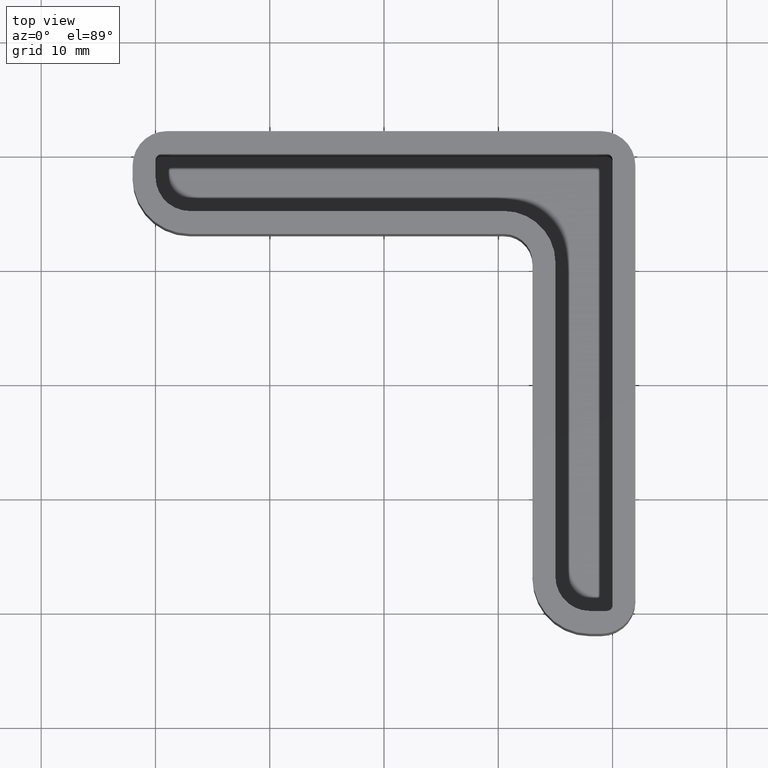
[diagram: clean part render]
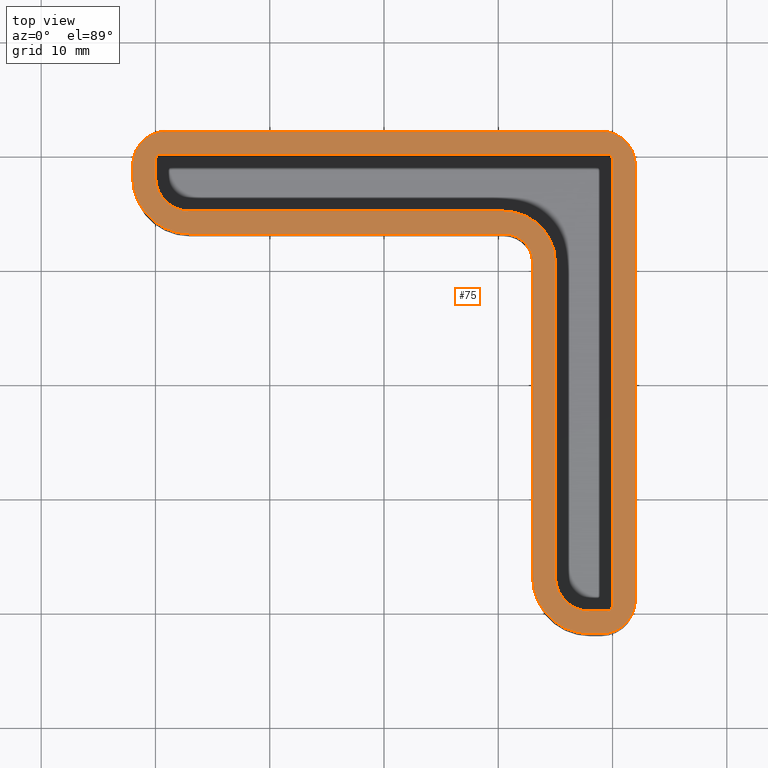
[diagram: same view with one face highlighted and labeled with its STEP entity id]
A machine part, top view. The second image highlights one B-rep face of the part: STEP entity #75.
In plain terms, the highlighted planar face has unit normal (0, 0, 1).
Its self-contained STEP definition (entity closure, byte-faithful):
#75 = ADVANCED_FACE( '', ( #115, #116 ), #117, .T. );
#115 = FACE_OUTER_BOUND( '', #194, .T. );
#116 = FACE_BOUND( '', #195, .T. );
#117 = PLANE( '', #196 );
#194 = EDGE_LOOP( '', ( #317, #318, #319, #320, #321, #322, #323, #324, #325, #326, #327, #328 ) );
#195 = EDGE_LOOP( '', ( #329, #330, #331, #332, #333, #334, #335, #336, #337, #338, #339, #340 ) );
#196 = AXIS2_PLACEMENT_3D( '', #341, #342, #343 );
#317 = ORIENTED_EDGE( '', *, *, #614, .T. );
#318 = ORIENTED_EDGE( '', *, *, #615, .T. );
#319 = ORIENTED_EDGE( '', *, *, #616, .T. );
#320 = ORIENTED_EDGE( '', *, *, #617, .T. );
#321 = ORIENTED_EDGE( '', *, *, #618, .T. );
#322 = ORIENTED_EDGE( '', *, *, #619, .T. );
#323 = ORIENTED_EDGE( '', *, *, #620, .T. );
#324 = ORIENTED_EDGE( '', *, *, #621, .T. );
#325 = ORIENTED_EDGE( '', *, *, #622, .T. );
#326 = ORIENTED_EDGE( '', *, *, #623, .T. );
#327 = ORIENTED_EDGE( '', *, *, #624, .T. );
#328 = ORIENTED_EDGE( '', *, *, #625, .T. );
#329 = ORIENTED_EDGE( '', *, *, #626, .T. );
#330 = ORIENTED_EDGE( '', *, *, #627, .T. );
#331 = ORIENTED_EDGE( '', *, *, #628, .T. );
#332 = ORIENTED_EDGE( '', *, *, #629, .T. );
#333 = ORIENTED_EDGE( '', *, *, #630, .T. );
#334 = ORIENTED_EDGE( '', *, *, #631, .T. );
#335 = ORIENTED_EDGE( '', *, *, #632, .T. );
#336 = ORIENTED_EDGE( '', *, *, #633, .T. );
#337 = ORIENTED_EDGE( '', *, *, #634, .T. );
#338 = ORIENTED_EDGE( '', *, *, #635, .T. );
#339 = ORIENTED_EDGE( '', *, *, #636, .T. );
#340 = ORIENTED_EDGE( '', *, *, #637, .T. );
#341 = CARTESIAN_POINT( '', ( -1.00000000000000, -39.0000000000000, 0.000000000000000 ) );
#342 = DIRECTION( '', ( 0.000000000000000, 0.000000000000000, 1.00000000000000 ) );
#343 = DIRECTION( '', ( 1.00000000000000, -1.83690953073357E-016, 0.000000000000000 ) );
#614 = EDGE_CURVE( '', #707, #708, #709, .T. );
#615 = EDGE_CURVE( '', #708, #710, #711, .T. );
#616 = EDGE_CURVE( '', #710, #712, #713, .T. );
#617 = EDGE_CURVE( '', #712, #714, #715, .T. );
#618 = EDGE_CURVE( '', #714, #716, #717, .T. );
#619 = EDGE_CURVE( '', #716, #718, #719, .T. );
#620 = EDGE_CURVE( '', #718, #720, #721, .T. );
#621 = EDGE_CURVE( '', #720, #722, #723, .T. );
#622 = EDGE_CURVE( '', #722, #724, #725, .T. );
#623 = EDGE_CURVE( '', #724, #726, #727, .T. );
#624 = EDGE_CURVE( '', #726, #728, #729, .T. );
#625 = EDGE_CURVE( '', #728, #707, #730, .T. );
#626 = EDGE_CURVE( '', #731, #732, #733, .T. );
#627 = EDGE_CURVE( '', #732, #734, #735, .F. );
#628 = EDGE_CURVE( '', #734, #736, #737, .T. );
#629 = EDGE_CURVE( '', #736, #738, #739, .F. );
#630 = EDGE_CURVE( '', #738, #740, #741, .T. );
#631 = EDGE_CURVE( '', #740, #742, #743, .T. );
#632 = EDGE_CURVE( '', #742, #744, #745, .T. );
#633 = EDGE_CURVE( '', #744, #746, #747, .F. );
#634 = EDGE_CURVE( '', #746, #748, #749, .T. );
#635 = EDGE_CURVE( '', #748, #750, #751, .F. );
#636 = EDGE_CURVE( '', #750, #752, #753, .T. );
#637 = EDGE_CURVE( '', #752, #731, #754, .F. );
#707 = VERTEX_POINT( '', #857 );
#708 = VERTEX_POINT( '', #858 );
#709 = CIRCLE( '', #859, 3.00000000000000 );
#710 = VERTEX_POINT( '', #860 );
#711 = LINE( '', #861, #862 );
#712 = VERTEX_POINT( '', #863 );
#713 = CIRCLE( '', #864, 3.00000000000000 );
#714 = VERTEX_POINT( '', #865 );
#715 = LINE( '', #866, #867 );
#716 = VERTEX_POINT( '', #868 );
#717 = CIRCLE( '', #869, 3.00000000000000 );
#718 = VERTEX_POINT( '', #870 );
#719 = LINE( '', #871, #872 );
#720 = VERTEX_POINT( '', #873 );
#721 = CIRCLE( '', #874, 5.00000000000000 );
#722 = VERTEX_POINT( '', #875 );
#723 = LINE( '', #876, #877 );
#724 = VERTEX_POINT( '', #878 );
#725 = CIRCLE( '', #879, 2.50000000000000 );
#726 = VERTEX_POINT( '', #880 );
#727 = LINE( '', #881, #882 );
#728 = VERTEX_POINT( '', #883 );
#729 = CIRCLE( '', #884, 5.00000000000000 );
#730 = LINE( '', #885, #886 );
#731 = VERTEX_POINT( '', #887 );
#732 = VERTEX_POINT( '', #888 );
#733 = LINE( '', #889, #890 );
#734 = VERTEX_POINT( '', #891 );
#735 = CIRCLE( '', #892, 0.500000000000000 );
#736 = VERTEX_POINT( '', #893 );
#737 = LINE( '', #894, #895 );
#738 = VERTEX_POINT( '', #896 );
#739 = CIRCLE( '', #897, 3.00000000000000 );
#740 = VERTEX_POINT( '', #898 );
#741 = LINE( '', #899, #900 );
#742 = VERTEX_POINT( '', #901 );
#743 = CIRCLE( '', #902, 4.50000000000000 );
#744 = VERTEX_POINT( '', #903 );
#745 = LINE( '', #904, #905 );
#746 = VERTEX_POINT( '', #906 );
#747 = CIRCLE( '', #907, 3.00000000000000 );
#748 = VERTEX_POINT( '', #908 );
#749 = LINE( '', #909, #910 );
#750 = VERTEX_POINT( '', #911 );
#751 = CIRCLE( '', #912, 0.500000000000000 );
#752 = VERTEX_POINT( '', #913 );
#753 = LINE( '', #914, #915 );
#754 = CIRCLE( '', #916, 0.500000000000000 );
#857 = CARTESIAN_POINT( '', ( -0.999999999999988, -42.0000000000000, 0.000000000000000 ) );
#858 = CARTESIAN_POINT( '', ( 1.99999999999999, -39.0000000000000, 0.000000000000000 ) );
#859 = AXIS2_PLACEMENT_3D( '', #1061, #1062, #1063 );
#860 = CARTESIAN_POINT( '', ( 2.00000000000000, -0.999999999999994, 0.000000000000000 ) );
#861 = CARTESIAN_POINT( '', ( 1.99999999999999, -39.0000000000000, 0.000000000000000 ) );
#862 = VECTOR( '', #1064, 1000.00000000000 );
#863 = CARTESIAN_POINT( '', ( -1.00000000000000, 2.00000000000000, 0.000000000000000 ) );
#864 = AXIS2_PLACEMENT_3D( '', #1065, #1066, #1067 );
#865 = CARTESIAN_POINT( '', ( -39.0000000000000, 2.00000000000001, 0.000000000000000 ) );
#866 = CARTESIAN_POINT( '', ( -1.00000000000000, 2.00000000000000, 0.000000000000000 ) );
#867 = VECTOR( '', #1068, 1000.00000000000 );
#868 = CARTESIAN_POINT( '', ( -42.0000000000000, -0.999999999999996, 0.000000000000000 ) );
#869 = AXIS2_PLACEMENT_3D( '', #1069, #1070, #1071 );
#870 = CARTESIAN_POINT( '', ( -42.0000000000000, -2.00000000000000, 0.000000000000000 ) );
#871 = CARTESIAN_POINT( '', ( -42.0000000000000, -0.999999999999996, 0.000000000000000 ) );
#872 = VECTOR( '', #1072, 1000.00000000000 );
#873 = CARTESIAN_POINT( '', ( -37.0000000000000, -7.00000000000000, 0.000000000000000 ) );
#874 = AXIS2_PLACEMENT_3D( '', #1073, #1074, #1075 );
#875 = CARTESIAN_POINT( '', ( -9.50000000000004, -7.00000000000001, 0.000000000000000 ) );
#876 = CARTESIAN_POINT( '', ( -37.0000000000000, -7.00000000000000, 0.000000000000000 ) );
#877 = VECTOR( '', #1076, 1000.00000000000 );
#878 = CARTESIAN_POINT( '', ( -7.00000000000000, -9.50000000000000, 0.000000000000000 ) );
#879 = AXIS2_PLACEMENT_3D( '', #1077, #1078, #1079 );
#880 = CARTESIAN_POINT( '', ( -7.00000000000001, -37.0000000000000, 0.000000000000000 ) );
#881 = CARTESIAN_POINT( '', ( -7.00000000000000, -9.49999999999999, 0.000000000000000 ) );
#882 = VECTOR( '', #1080, 1000.00000000000 );
#883 = CARTESIAN_POINT( '', ( -2.00000000000001, -42.0000000000000, 0.000000000000000 ) );
#884 = AXIS2_PLACEMENT_3D( '', #1081, #1082, #1083 );
#885 = CARTESIAN_POINT( '', ( -2.00000000000001, -42.0000000000000, 0.000000000000000 ) );
#886 = VECTOR( '', #1084, 1000.00000000000 );
#887 = CARTESIAN_POINT( '', ( -9.18454765366773E-017, -0.499999999999994, 0.000000000000000 ) );
#888 = CARTESIAN_POINT( '', ( -7.25579264639759E-015, -39.5000000000000, 0.000000000000000 ) );
#889 = CARTESIAN_POINT( '', ( -7.16120955937538E-015, -39.0000000000000, 0.000000000000000 ) );
#890 = VECTOR( '', #1085, 1000.00000000000 );
#891 = CARTESIAN_POINT( '', ( -0.500000000000008, -40.0000000000000, 0.000000000000000 ) );
#892 = AXIS2_PLACEMENT_3D( '', #1086, #1087, #1088 );
#893 = CARTESIAN_POINT( '', ( -2.00000000000001, -40.0000000000000, 0.000000000000000 ) );
#894 = CARTESIAN_POINT( '', ( -1.00000000000000, -40.0000000000000, 0.000000000000000 ) );
#895 = VECTOR( '', #1089, 1000.00000000000 );
#896 = CARTESIAN_POINT( '', ( -5.00000000000001, -37.0000000000000, 0.000000000000000 ) );
#897 = AXIS2_PLACEMENT_3D( '', #1090, #1091, #1092 );
#898 = CARTESIAN_POINT( '', ( -5.00000000000001, -9.50000000000000, 0.000000000000000 ) );
#899 = CARTESIAN_POINT( '', ( -5.00000000000001, -39.0000000000000, 0.000000000000000 ) );
#900 = VECTOR( '', #1093, 1000.00000000000 );
#901 = CARTESIAN_POINT( '', ( -9.50000000000003, -5.00000000000000, 0.000000000000000 ) );
#902 = AXIS2_PLACEMENT_3D( '', #1094, #1095, #1096 );
#903 = CARTESIAN_POINT( '', ( -37.0000000000000, -5.00000000000001, 0.000000000000000 ) );
#904 = CARTESIAN_POINT( '', ( -0.999999999999999, -5.00000000000000, 0.000000000000000 ) );
#905 = VECTOR( '', #1097, 1000.00000000000 );
#906 = CARTESIAN_POINT( '', ( -40.0000000000000, -2.00000000000000, 0.000000000000000 ) );
#907 = AXIS2_PLACEMENT_3D( '', #1098, #1099, #1100 );
#908 = CARTESIAN_POINT( '', ( -40.0000000000000, -0.499999999999996, 0.000000000000000 ) );
#909 = CARTESIAN_POINT( '', ( -40.0000000000000, -39.0000000000000, 0.000000000000000 ) );
#910 = VECTOR( '', #1101, 1000.00000000000 );
#911 = CARTESIAN_POINT( '', ( -39.5000000000000, 4.83719509759839E-015, 0.000000000000000 ) );
#912 = AXIS2_PLACEMENT_3D( '', #1102, #1103, #1104 );
#913 = CARTESIAN_POINT( '', ( -0.500000000000000, 6.12303176911189E-017, 0.000000000000000 ) );
#914 = CARTESIAN_POINT( '', ( -0.999999999999998, 1.22460635382238E-016, 0.000000000000000 ) );
#915 = VECTOR( '', #1105, 1000.00000000000 );
#916 = AXIS2_PLACEMENT_3D( '', #1106, #1107, #1108 );
#1061 = CARTESIAN_POINT( '', ( -1.00000000000000, -39.0000000000000, 0.000000000000000 ) );
#1062 = DIRECTION( '', ( 0.000000000000000, 0.000000000000000, 1.00000000000000 ) );
#1063 = DIRECTION( '', ( -1.83690953073357E-016, -1.00000000000000, 0.000000000000000 ) );
#1064 = DIRECTION( '', ( 1.83690953073357E-016, 1.00000000000000, 0.000000000000000 ) );
#1065 = CARTESIAN_POINT( '', ( -1.00000000000000, -1.00000000000000, 0.000000000000000 ) );
#1066 = DIRECTION( '', ( 0.000000000000000, 0.000000000000000, 1.00000000000000 ) );
#1067 = DIRECTION( '', ( 1.00000000000000, -1.83690953073357E-016, 0.000000000000000 ) );
#1068 = DIRECTION( '', ( -1.00000000000000, 1.22460635382238E-016, 0.000000000000000 ) );
#1069 = CARTESIAN_POINT( '', ( -39.0000000000000, -0.999999999999996, 0.000000000000000 ) );
#1070 = DIRECTION( '', ( 0.000000000000000, 0.000000000000000, 1.00000000000000 ) );
#1071 = DIRECTION( '', ( 1.83690953073357E-016, 1.00000000000000, 0.000000000000000 ) );
#1072 = DIRECTION( '', ( -1.91849574421310E-016, -1.00000000000000, 0.000000000000000 ) );
#1073 = CARTESIAN_POINT( '', ( -37.0000000000000, -2.00000000000000, 0.000000000000000 ) );
#1074 = DIRECTION( '', ( 0.000000000000000, 0.000000000000000, 1.00000000000000 ) );
#1075 = DIRECTION( '', ( -1.00000000000000, 1.83690953073357E-016, 0.000000000000000 ) );
#1076 = DIRECTION( '', ( 1.00000000000000, -1.22460635382238E-016, 0.000000000000000 ) );
#1077 = CARTESIAN_POINT( '', ( -9.50000000000001, -9.50000000000000, 0.000000000000000 ) );
#1078 = DIRECTION( '', ( 0.000000000000000, 0.000000000000000, -1.00000000000000 ) );
#1079 = DIRECTION( '', ( 1.83690953073357E-016, 1.00000000000000, 0.000000000000000 ) );
#1080 = DIRECTION( '', ( -1.83175957041426E-016, -1.00000000000000, 0.000000000000000 ) );
#1081 = CARTESIAN_POINT( '', ( -2.00000000000001, -37.0000000000000, 0.000000000000000 ) );
#1082 = DIRECTION( '', ( 0.000000000000000, 0.000000000000000, 1.00000000000000 ) );
#1083 = DIRECTION( '', ( -1.00000000000000, 1.83690953073357E-016, 0.000000000000000 ) );
#1084 = DIRECTION( '', ( 1.00000000000000, -1.22460635382238E-016, 0.000000000000000 ) );
#1085 = DIRECTION( '', ( -1.83690953073357E-016, -1.00000000000000, 0.000000000000000 ) );
#1086 = CARTESIAN_POINT( '', ( -0.500000000000005, -39.5000000000000, 0.000000000000000 ) );
#1087 = DIRECTION( '', ( 0.000000000000000, 0.000000000000000, 1.00000000000000 ) );
#1088 = DIRECTION( '', ( -1.00000000000000, 1.22460635382238E-016, 0.000000000000000 ) );
#1089 = DIRECTION( '', ( -1.00000000000000, 1.22460635382238E-016, 0.000000000000000 ) );
#1090 = CARTESIAN_POINT( '', ( -2.00000000000001, -37.0000000000000, 0.000000000000000 ) );
#1091 = DIRECTION( '', ( 0.000000000000000, 0.000000000000000, 1.00000000000000 ) );
#1092 = DIRECTION( '', ( -1.00000000000000, 1.22460635382238E-016, 0.000000000000000 ) );
#1093 = DIRECTION( '', ( 1.83175957041426E-016, 1.00000000000000, 0.000000000000000 ) );
#1094 = CARTESIAN_POINT( '', ( -9.50000000000001, -9.50000000000000, 0.000000000000000 ) );
#1095 = DIRECTION( '', ( 0.000000000000000, 0.000000000000000, 1.00000000000000 ) );
#1096 = DIRECTION( '', ( -1.00000000000000, 1.22460635382238E-016, 0.000000000000000 ) );
#1097 = DIRECTION( '', ( -1.00000000000000, 1.22460635382238E-016, 0.000000000000000 ) );
#1098 = CARTESIAN_POINT( '', ( -37.0000000000000, -2.00000000000000, 0.000000000000000 ) );
#1099 = DIRECTION( '', ( 0.000000000000000, 0.000000000000000, 1.00000000000000 ) );
#1100 = DIRECTION( '', ( -1.00000000000000, 1.22460635382238E-016, 0.000000000000000 ) );
#1101 = DIRECTION( '', ( 1.91849574421310E-016, 1.00000000000000, 0.000000000000000 ) );
#1102 = CARTESIAN_POINT( '', ( -39.5000000000000, -0.499999999999996, 0.000000000000000 ) );
#1103 = DIRECTION( '', ( 0.000000000000000, 0.000000000000000, 1.00000000000000 ) );
#1104 = DIRECTION( '', ( -1.00000000000000, 1.22460635382238E-016, 0.000000000000000 ) );
#1105 = DIRECTION( '', ( 1.00000000000000, -1.22460635382238E-016, 0.000000000000000 ) );
#1106 = CARTESIAN_POINT( '', ( -0.500000000000000, -0.500000000000000, 0.000000000000000 ) );
#1107 = DIRECTION( '', ( 0.000000000000000, 0.000000000000000, 1.00000000000000 ) );
#1108 = DIRECTION( '', ( -1.00000000000000, 1.22460635382238E-016, 0.000000000000000 ) );